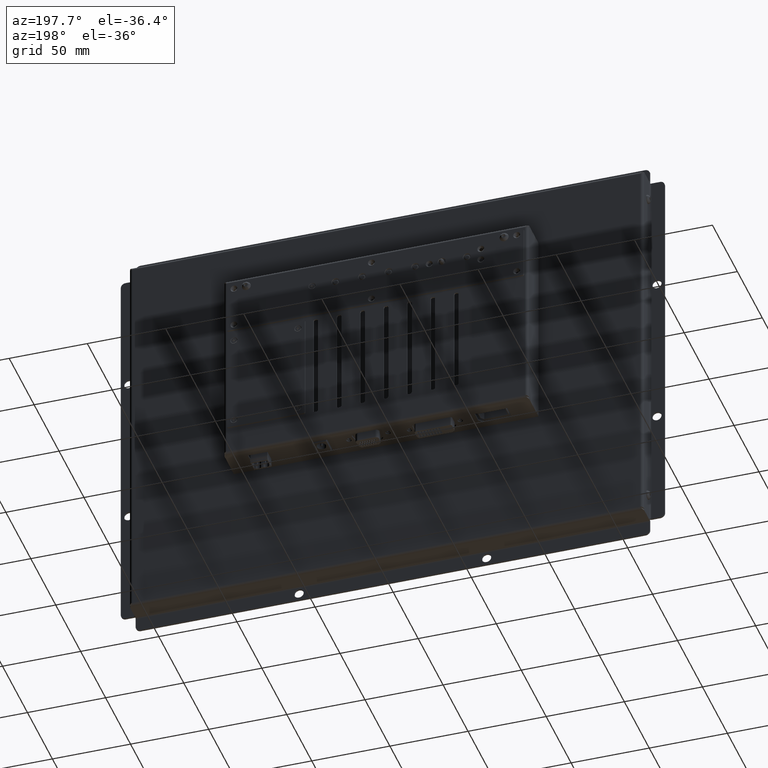
[diagram: clean part render]
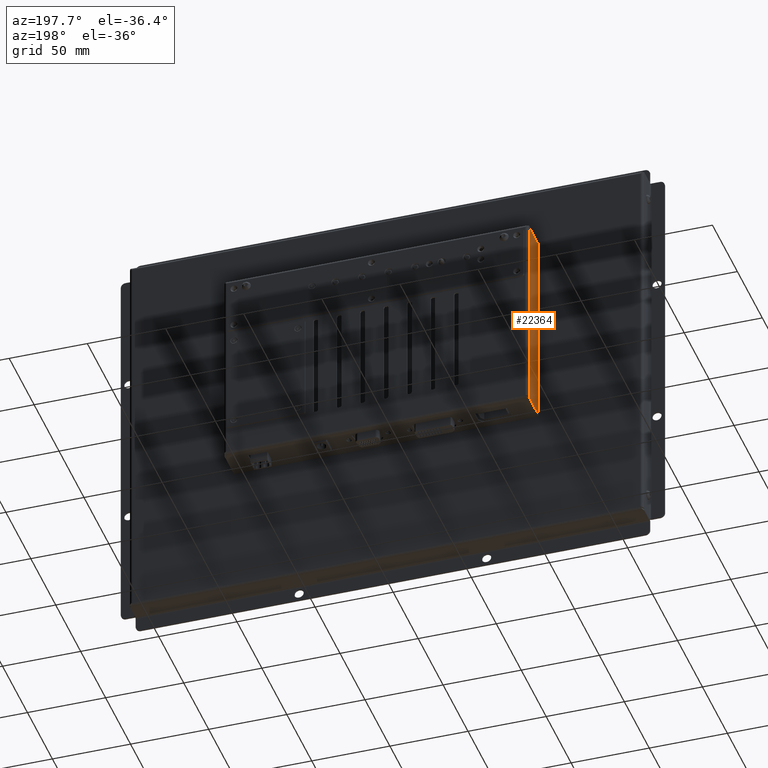
[diagram: same view with one face highlighted and labeled with its STEP entity id]
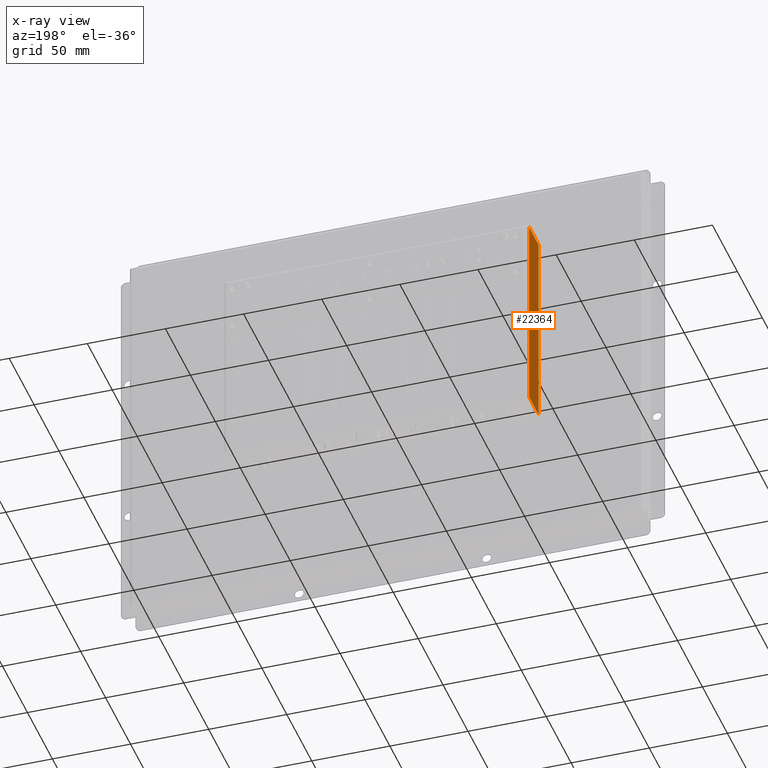
[diagram: x-ray of the same camera — body ghosted, the highlighted face saturated]
A machine part, auxiliary view. The second image highlights one B-rep face of the part: STEP entity #22364.
The next image is the same camera in x-ray: the body ghosted, the highlighted face saturated — about 0% of this face is hidden behind the body in this view.
In plain terms, the highlighted planar face has unit normal (-1, 0, 0).
Its self-contained STEP definition (entity closure, byte-faithful):
#2167=PLANE('',#24370);
#3174=FACE_OUTER_BOUND('',#4550,.T.);
#4550=EDGE_LOOP('',(#19216,#19217,#19218,#19219,#19220,#19221));
#6498=LINE('',#37777,#8350);
#6501=LINE('',#37783,#8353);
#6502=LINE('',#37787,#8354);
#6503=LINE('',#37788,#8355);
#8350=VECTOR('',#29084,10.);
#8353=VECTOR('',#29089,10.);
#8354=VECTOR('',#29092,10.);
#8355=VECTOR('',#29093,10.);
#9304=CIRCLE('',#24367,0.5);
#9306=CIRCLE('',#24371,0.5);
#11170=VERTEX_POINT('',#37767);
#11171=VERTEX_POINT('',#37768);
#11174=VERTEX_POINT('',#37776);
#11176=VERTEX_POINT('',#37782);
#11177=VERTEX_POINT('',#37784);
#11178=VERTEX_POINT('',#37786);
#13985=EDGE_CURVE('',#11170,#11171,#9304,.T.);
#13989=EDGE_CURVE('',#11171,#11174,#6498,.T.);
#13992=EDGE_CURVE('',#11176,#11170,#6501,.T.);
#13993=EDGE_CURVE('',#11177,#11176,#9306,.T.);
#13994=EDGE_CURVE('',#11177,#11178,#6502,.T.);
#13995=EDGE_CURVE('',#11178,#11174,#6503,.T.);
#19216=ORIENTED_EDGE('',*,*,#13985,.F.);
#19217=ORIENTED_EDGE('',*,*,#13992,.F.);
#19218=ORIENTED_EDGE('',*,*,#13993,.F.);
#19219=ORIENTED_EDGE('',*,*,#13994,.T.);
#19220=ORIENTED_EDGE('',*,*,#13995,.T.);
#19221=ORIENTED_EDGE('',*,*,#13989,.F.);
#22364=ADVANCED_FACE('',(#3174),#2167,.T.);
#24367=AXIS2_PLACEMENT_3D('',#37769,#29076,#29077);
#24370=AXIS2_PLACEMENT_3D('',#37781,#29087,#29088);
#24371=AXIS2_PLACEMENT_3D('',#37785,#29090,#29091);
#29076=DIRECTION('center_axis',(-1.,-2.13094590034655E-17,-1.72572530118803E-15));
#29077=DIRECTION('ref_axis',(0.,-0.707106781186538,-0.707106781186557));
#29084=DIRECTION('',(-2.10358046771082E-15,1.63611814155286E-15,1.));
#29087=DIRECTION('center_axis',(1.,2.13094590034655E-17,1.72572530118803E-15));
#29088=DIRECTION('ref_axis',(1.72572530118803E-15,-3.49676543189025E-17,
-1.));
#29089=DIRECTION('',(0.,-1.,0.));
#29090=DIRECTION('center_axis',(-1.,-2.13094590034655E-17,-1.72572530118803E-15));
#29091=DIRECTION('ref_axis',(0.,0.707106781186548,-0.707106781186548));
#29092=DIRECTION('',(-3.73969860926369E-15,9.34924652315923E-15,1.));
#29093=DIRECTION('',(2.13094590034655E-17,-1.,-2.50981519212001E-32));
#37767=CARTESIAN_POINT('',(-26.67547,-27.618324,-20.));
#37768=CARTESIAN_POINT('',(-26.67547,-28.118324,-19.5));
#37769=CARTESIAN_POINT('Origin',(-26.6754699999999,-27.618324,-19.5));
#37776=CARTESIAN_POINT('',(-26.67547,-28.118324,-1.));
#37777=CARTESIAN_POINT('',(-26.6754700000001,-28.118324,-0.999999999999995));
#37781=CARTESIAN_POINT('Origin',(-26.67547,36.281676,-9.37000053843027));
#37782=CARTESIAN_POINT('',(-26.67547,100.181676,-20.));
#37783=CARTESIAN_POINT('',(-26.67547,566.662855206853,-20.));
#37784=CARTESIAN_POINT('',(-26.67547,100.681676,-19.5));
#37785=CARTESIAN_POINT('Origin',(-26.6754700000004,100.181676,-19.5));
#37786=CARTESIAN_POINT('',(-26.67547,100.681676,-1.));
#37787=CARTESIAN_POINT('',(-26.6754700000001,100.681676,-1.00000000000002));
#37788=CARTESIAN_POINT('',(-26.67547,36.281676,-0.999999999999996));